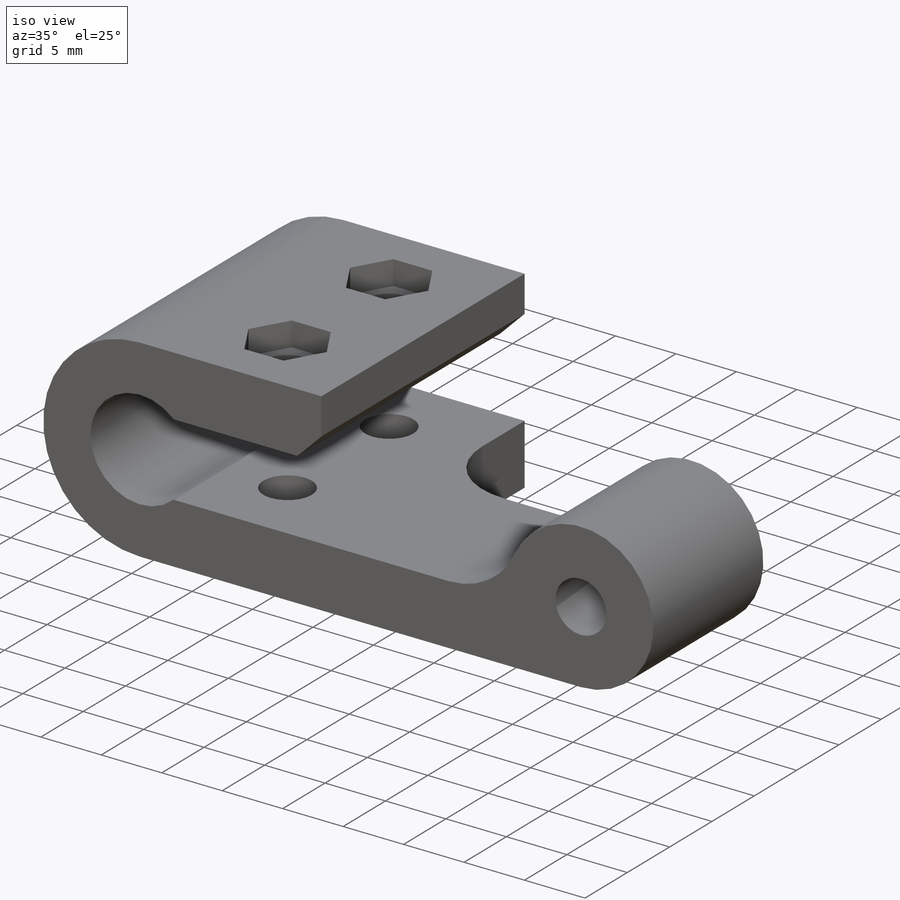
[diagram: iso view]
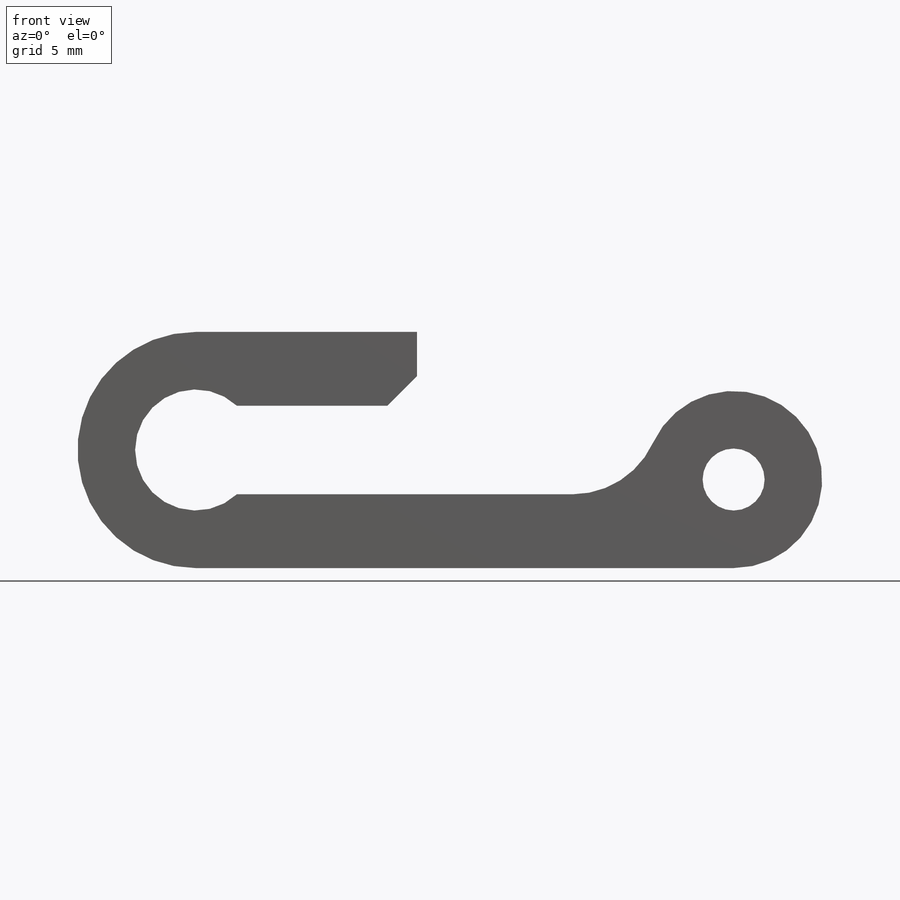
[diagram: front view]
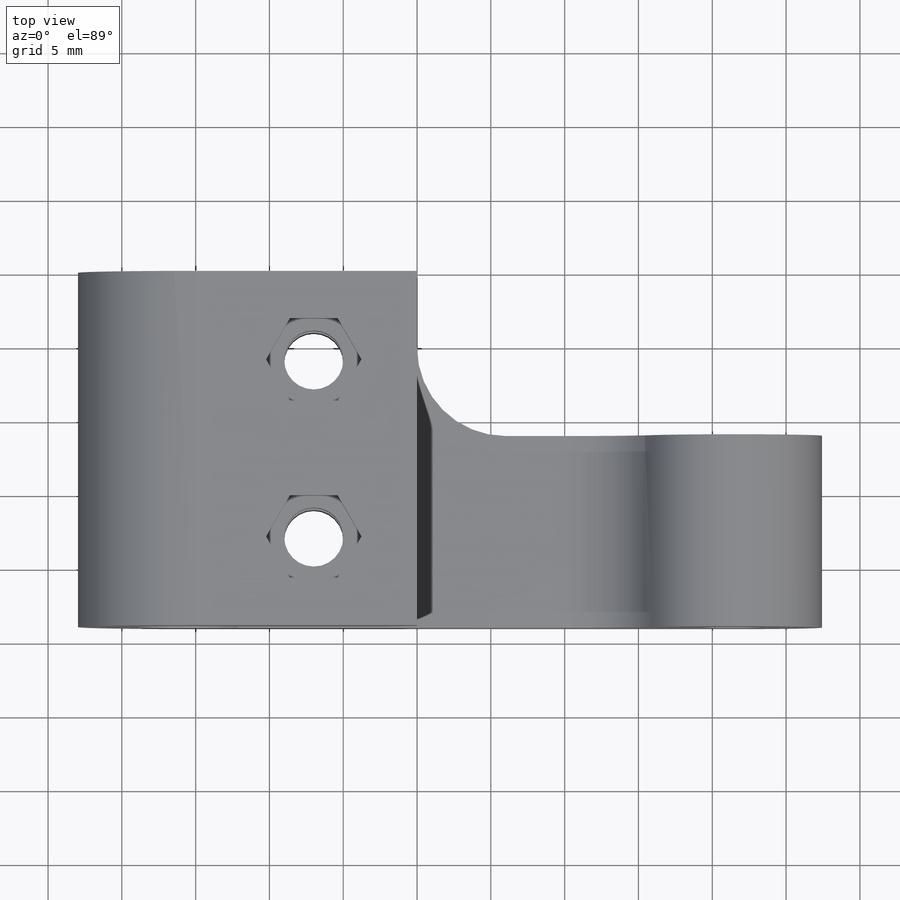
[diagram: top view]
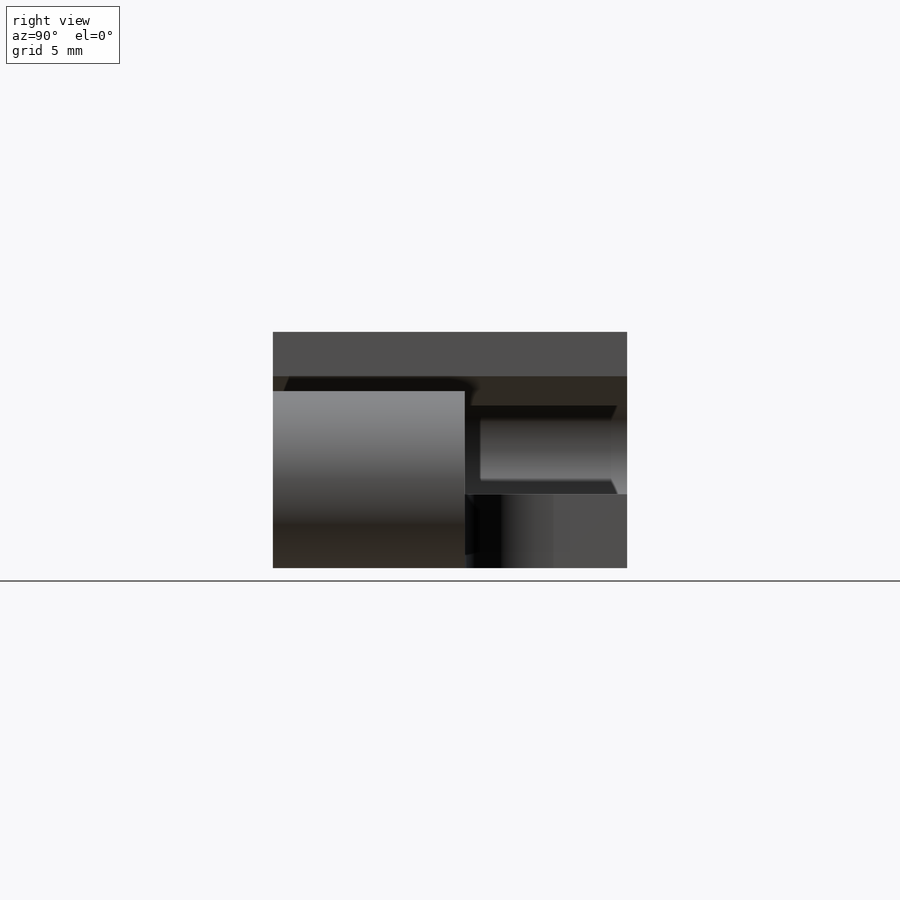
[diagram: right view]
SOLIDWORKS PART (.sldprt)
format: sldprt  version: not decoded by parser v0  size: 281,600 bytes
history: native  units: mm
features: sketch x4, cut_extrude x3, material x1, extrude x1, chamfer x1 (+11 scaffold rows collapsed)
feature tree (21):
  scaffold x11  (default folders/planes/origin — collapsed)
  material  "Material <not specified>"
  sketch  "Sketch1"  dims[c1.D2=8.2mm c1.D3=16.0mm c1.D9=4.2mm c1.D10=12.0mm c1.D12=7.0mm c1.D13=6.0mm c1.D1=15.0mm c1.D4=~71.555207mm c1.D5=6.0mm c1.D6=3.0mm c1.D7=1.5mm c1.D8=7.0mm c2.D4=36.5mm c2.D11=3.0mm]
  extrude  "Boss-Extrude1"  Depth=24mm
  sketch  "Sketch2"  dims[c1.D8=4.0mm c1.D1=5.1mm c1.D2=23.5mm c1.D3=20.5mm c1.D4=13.75mm c1.D5=20.0mm c1.D6=8.0mm c1.D7=12.0mm c1.D9=6.0mm c2.D2=13.0mm]
  cut_extrude  "Cut-Extrude1"  [1 undecoded]
  sketch  "Sketch3"  dims[D1=5.6mm]
  cut_extrude  "Cut-Extrude2"  Depth=2mm
  sketch  "Sketch4"  dims[D1=7.0mm]
  cut_extrude  "Cut-Extrude3"  Depth=5mm
  chamfer  "Chamfer1"  Distance=2mm Angle=45deg
decode coverage: 8 of 9 modeling features carry decoded parameters
note: ~ marks probable driven/reference dimensions
note: 1 parameter value undecoded
note: suppression state not decoded; provenance and decode notes live in map.json
